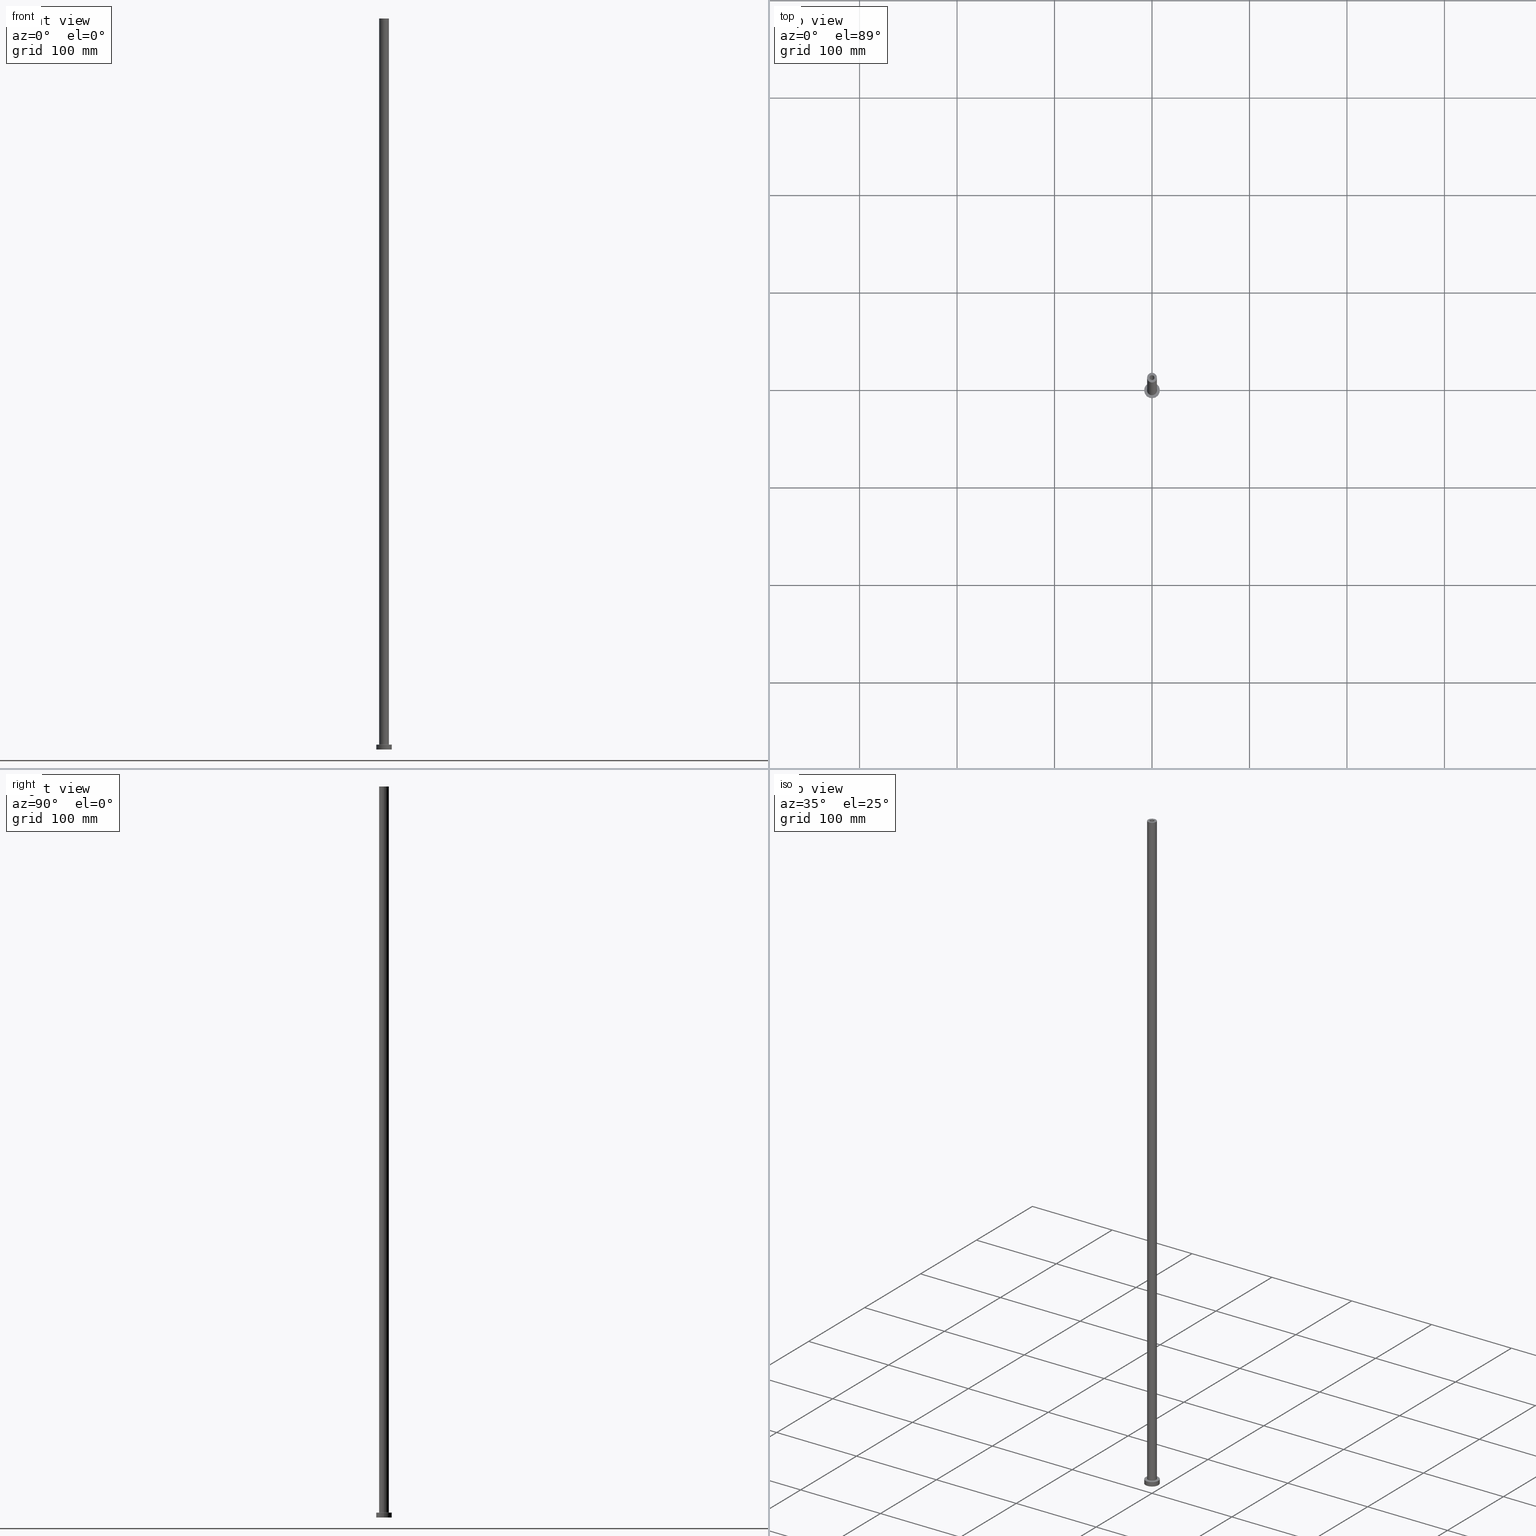
[diagram: canonical four-view strip — front | top / right | iso, engineering-drawing reading convention]
A machine part, canonical four-view strip (front | top / right | iso — engineering-drawing reading convention). The complete STEP part file that produces these views, byte-faithful:
ISO-10303-21;
HEADER;
FILE_DESCRIPTION (( 'STEP AP203' ),
    '1' );
FILE_NAME ('2266.STEP',
    '2023-02-13T16:56:17',
    ( '' ),
    ( '' ),
    'SwSTEP 2.0',
    'SolidWorks 2019',
    '' );
FILE_SCHEMA (( 'CONFIG_CONTROL_DESIGN' ));
ENDSEC;

DATA;
#1 = DIRECTION ( 'NONE',  ( 0.000000000000000000, 0.000000000000000000, 1.000000000000000000 ) ) ;
#2 = DIRECTION ( 'NONE',  ( 1.000000000000000000, 0.000000000000000000, 0.000000000000000000 ) ) ;
#3 = DIRECTION ( 'NONE',  ( 0.000000000000000000, 0.000000000000000000, -1.000000000000000000 ) ) ;
#4 = FACE_OUTER_BOUND ( 'NONE', #209, .T. ) ;
#5 = EDGE_CURVE ( 'NONE', #262, #120, #332, .T. ) ;
#6 = ORIENTED_EDGE ( 'NONE', *, *, #340, .F. ) ;
#7 = DIRECTION ( 'NONE',  ( -1.000000000000000000, 0.000000000000000000, 0.000000000000000000 ) ) ;
#8 = CARTESIAN_POINT ( 'NONE',  ( 0.000000000000000000, 0.000000000000000000, 5.499999999999949374 ) ) ;
#9 = ORIENTED_EDGE ( 'NONE', *, *, #247, .F. ) ;
#10 = PERSON_AND_ORGANIZATION_ROLE ( 'design_owner' ) ;
#11 = AXIS2_PLACEMENT_3D ( 'NONE', #408, #235, #378 ) ;
#12 = DIRECTION ( 'NONE',  ( 0.000000000000000000, 0.000000000000000000, -1.000000000000000000 ) ) ;
#13 = EDGE_CURVE ( 'NONE', #430, #51, #415, .T. ) ;
#14 = ADVANCED_BREP_SHAPE_REPRESENTATION ( '2266', ( #386, #192 ), #200 ) ;
#15 = EDGE_LOOP ( 'NONE', ( #435, #438, #16, #9 ) ) ;
#16 = ORIENTED_EDGE ( 'NONE', *, *, #5, .F. ) ;
#17 = EDGE_LOOP ( 'NONE', ( #233, #226 ) ) ;
#18 = DIRECTION ( 'NONE',  ( 0.000000000000000000, 0.000000000000000000, 1.000000000000000000 ) ) ;
#19 = APPROVAL ( #306, 'NEUR�EN�' ) ;
#20 = DATE_TIME_ROLE ( 'creation_date' ) ;
#21 = PERSON_AND_ORGANIZATION_ROLE ( 'creator' ) ;
#22 = PRODUCT_DEFINITION_FORMATION_WITH_SPECIFIED_SOURCE ( 'LIBOVOLN�', '', #404, .NOT_KNOWN. ) ;
#23 = AXIS2_PLACEMENT_3D ( 'NONE', #111, #321, #455 ) ;
#24 = CALENDAR_DATE ( 2023, 13, 2 ) ;
#25 = CIRCLE ( 'NONE', #32, 5.000000000000000000 ) ;
#26 = DIRECTION ( 'NONE',  ( -0.000000000000000000, -0.000000000000000000, -1.000000000000000000 ) ) ;
#27 = CARTESIAN_POINT ( 'NONE',  ( -5.000000000000000000, 0.000000000000000000, 5.499999999999949374 ) ) ;
#28 = COORDINATED_UNIVERSAL_TIME_OFFSET ( 1, 0, .AHEAD. ) ;
#29 = EDGE_CURVE ( 'NONE', #406, #51, #57, .T. ) ;
#30 = CARTESIAN_POINT ( 'NONE',  ( 5.500000000000000000, 0.000000000000000000, 4.999999999999975131 ) ) ;
#31 = FACE_OUTER_BOUND ( 'NONE', #213, .T. ) ;
#32 = AXIS2_PLACEMENT_3D ( 'NONE', #44, #224, #191 ) ;
#33 = PERSON ( 'NEUR�EN�', 'NEUR�EN�', 'NEUR�EN�', ('NEUR�EN�'), ('NEUR�EN�'), ('NEUR�EN�') ) ;
#34 = TOROIDAL_SURFACE ( 'NONE', #301, 5.500000000000000000, 0.5000000000000000000 ) ;
#35 = CYLINDRICAL_SURFACE ( 'NONE', #436, 5.000000000000000000 ) ;
#36 = CC_DESIGN_SECURITY_CLASSIFICATION ( #188, ( #22 ) ) ;
#37 = DIRECTION ( 'NONE',  ( 0.000000000000000000, 0.000000000000000000, 1.000000000000000000 ) ) ;
#38 = DIRECTION ( 'NONE',  ( -0.000000000000000000, -0.000000000000000000, -1.000000000000000000 ) ) ;
#39 = VECTOR ( 'NONE', #63, 1000.000000000000000 ) ;
#40 = EDGE_CURVE ( 'NONE', #51, #430, #277, .T. ) ;
#41 = DIRECTION ( 'NONE',  ( 0.000000000000000000, 0.000000000000000000, -1.000000000000000000 ) ) ;
#42 = CARTESIAN_POINT ( 'NONE',  ( 0.000000000000000000, 0.000000000000000000, 0.000000000000000000 ) ) ;
#43 = ORIENTED_EDGE ( 'NONE', *, *, #340, .T. ) ;
#44 = CARTESIAN_POINT ( 'NONE',  ( 0.000000000000000000, 0.000000000000000000, 5.499999999999949374 ) ) ;
#45 = EDGE_LOOP ( 'NONE', ( #303, #148 ) ) ;
#46 = DESIGN_CONTEXT ( 'detailed design', #230, 'design' ) ;
#47 = VECTOR ( 'NONE', #182, 1000.000000000000000 ) ;
#48 = FACE_OUTER_BOUND ( 'NONE', #297, .T. ) ;
#49 = EDGE_CURVE ( 'NONE', #120, #262, #72, .T. ) ;
#50 = AXIS2_PLACEMENT_3D ( 'NONE', #113, #119, #160 ) ;
#51 = VERTEX_POINT ( 'NONE', #381 ) ;
#52 = VERTEX_POINT ( 'NONE', #312 ) ;
#53 = DIRECTION ( 'NONE',  ( 1.000000000000000000, 0.000000000000000000, -0.000000000000000000 ) ) ;
#54 = DATE_AND_TIME ( #59, #212 ) ;
#55 = EDGE_CURVE ( 'NONE', #403, #115, #240, .T. ) ;
#56 = CARTESIAN_POINT ( 'NONE',  ( 0.000000000000000000, 0.000000000000000000, 705.0000000000000000 ) ) ;
#57 = LINE ( 'NONE', #82, #310 ) ;
#58 = VECTOR ( 'NONE', #176, 1000.000000000000000 ) ;
#59 = CALENDAR_DATE ( 2023, 13, 2 ) ;
#60 = CIRCLE ( 'NONE', #74, 0.5000000000000004441 ) ;
#61 = LOCAL_TIME ( 17, 56, 17.00000000000000000, #242 ) ;
#62 = ADVANCED_FACE ( 'NONE', ( #342 ), #442, .F. ) ;
#63 = DIRECTION ( 'NONE',  ( -0.000000000000000000, -0.000000000000000000, -1.000000000000000000 ) ) ;
#64 = CALENDAR_DATE ( 2023, 13, 2 ) ;
#65 = APPROVAL_PERSON_ORGANIZATION ( #172, #211, #279 ) ;
#66 = AXIS2_PLACEMENT_3D ( 'NONE', #108, #324, #110 ) ;
#67 = CALENDAR_DATE ( 2023, 13, 2 ) ;
#68 = EDGE_CURVE ( 'NONE', #391, #430, #241, .T. ) ;
#69 = DIRECTION ( 'NONE',  ( -1.000000000000000000, 0.000000000000000000, 0.000000000000000000 ) ) ;
#70 = CARTESIAN_POINT ( 'NONE',  ( 0.000000000000000000, 0.000000000000000000, 5.000000000000000000 ) ) ;
#71 = CC_DESIGN_PERSON_AND_ORGANIZATION_ASSIGNMENT ( #261, #10, ( #404 ) ) ;
#72 = CIRCLE ( 'NONE', #133, 2.500000000000000000 ) ;
#73 = DIRECTION ( 'NONE',  ( 1.000000000000000000, 0.000000000000000000, -0.000000000000000000 ) ) ;
#74 = AXIS2_PLACEMENT_3D ( 'NONE', #325, #205, #103 ) ;
#75 = CARTESIAN_POINT ( 'NONE',  ( 0.000000000000000000, 0.000000000000000000, 750.0000000000000000 ) ) ;
#76 = CYLINDRICAL_SURFACE ( 'NONE', #173, 2.500000000000000000 ) ;
#77 = CARTESIAN_POINT ( 'NONE',  ( -5.000000000000000000, 0.000000000000000000, 750.0000000000000000 ) ) ;
#78 = DIRECTION ( 'NONE',  ( -1.000000000000000000, 0.000000000000000000, 0.000000000000000000 ) ) ;
#79 = ORIENTED_EDGE ( 'NONE', *, *, #154, .T. ) ;
#80 = VECTOR ( 'NONE', #109, 1000.000000000000000 ) ;
#81 = FACE_OUTER_BOUND ( 'NONE', #376, .T. ) ;
#82 = CARTESIAN_POINT ( 'NONE',  ( -8.000000000000000000, 0.000000000000000000, 5.000000000000000000 ) ) ;
#83 = EDGE_LOOP ( 'NONE', ( #189, #331, #295, #157 ) ) ;
#84 = CARTESIAN_POINT ( 'NONE',  ( 2.649999999999999911, 3.245314017740485962E-16, 705.0000000000000000 ) ) ;
#85 = PRODUCT_DEFINITION ( 'NEZN�M�', '', #22, #46 ) ;
#86 = ORIENTED_EDGE ( 'NONE', *, *, #183, .F. ) ;
#87 = ORIENTED_EDGE ( 'NONE', *, *, #260, .T. ) ;
#88 = CIRCLE ( 'NONE', #357, 2.500000000000000000 ) ;
#89 = ORIENTED_EDGE ( 'NONE', *, *, #449, .F. ) ;
#90 = ORIENTED_EDGE ( 'NONE', *, *, #68, .F. ) ;
#91 = EDGE_LOOP ( 'NONE', ( #305, #267 ) ) ;
#92 = DIRECTION ( 'NONE',  ( -1.000000000000000000, 0.000000000000000000, 0.000000000000000000 ) ) ;
#93 = PERSON_AND_ORGANIZATION_ROLE ( 'creator' ) ;
#94 = AXIS2_PLACEMENT_3D ( 'NONE', #397, #1, #151 ) ;
#95 = DATE_AND_TIME ( #64, #265 ) ;
#96 = CIRCLE ( 'NONE', #358, 5.500000000000000000 ) ;
#97 = APPROVAL_PERSON_ORGANIZATION ( #316, #252, #167 ) ;
#98 = CIRCLE ( 'NONE', #363, 5.500000000000000000 ) ;
#99 = AXIS2_PLACEMENT_3D ( 'NONE', #390, #450, #355 ) ;
#100 = DIRECTION ( 'NONE',  ( 1.000000000000000000, 0.000000000000000000, 0.000000000000000000 ) ) ;
#101 = CC_DESIGN_PERSON_AND_ORGANIZATION_ASSIGNMENT ( #273, #137, ( #188 ) ) ;
#102 = ORIENTED_EDGE ( 'NONE', *, *, #29, .F. ) ;
#103 = DIRECTION ( 'NONE',  ( 0.000000000000000000, 0.000000000000000000, -1.000000000000000000 ) ) ;
#104 = FACE_OUTER_BOUND ( 'NONE', #17, .T. ) ;
#105 = LOCAL_TIME ( 17, 56, 17.00000000000000000, #135 ) ;
#106 = VERTEX_POINT ( 'NONE', #30 ) ;
#107 = PLANE ( 'NONE',  #258 ) ;
#108 = CARTESIAN_POINT ( 'NONE',  ( 0.000000000000000000, 0.000000000000000000, 750.0000000000000000 ) ) ;
#109 = DIRECTION ( 'NONE',  ( 0.000000000000000000, 0.000000000000000000, -1.000000000000000000 ) ) ;
#110 = DIRECTION ( 'NONE',  ( 1.000000000000000000, 0.000000000000000000, 0.000000000000000000 ) ) ;
#111 = CARTESIAN_POINT ( 'NONE',  ( 0.000000000000000000, 0.000000000000000000, 5.499999999999949374 ) ) ;
#112 = ADVANCED_FACE ( 'NONE', ( #246 ), #76, .F. ) ;
#113 = CARTESIAN_POINT ( 'NONE',  ( 0.000000000000000000, 0.000000000000000000, 0.000000000000000000 ) ) ;
#114 = VERTEX_POINT ( 'NONE', #395 ) ;
#115 = VERTEX_POINT ( 'NONE', #290 ) ;
#116 = PRODUCT_DEFINITION_SHAPE ( 'NONE', 'NONE',  #85 ) ;
#117 = CARTESIAN_POINT ( 'NONE',  ( 0.000000000000000000, 0.000000000000000000, 712.4953318805775098 ) ) ;
#118 = EDGE_CURVE ( 'NONE', #418, #115, #370, .T. ) ;
#119 = DIRECTION ( 'NONE',  ( -0.000000000000000000, -0.000000000000000000, -1.000000000000000000 ) ) ;
#120 = VERTEX_POINT ( 'NONE', #149 ) ;
#121 = DIRECTION ( 'NONE',  ( -1.000000000000000000, 0.000000000000000000, 0.000000000000000000 ) ) ;
#122 = FACE_BOUND ( 'NONE', #194, .T. ) ;
#123 = ORIENTED_EDGE ( 'NONE', *, *, #68, .T. ) ;
#124 = DIRECTION ( 'NONE',  ( 0.000000000000000000, 0.000000000000000000, -1.000000000000000000 ) ) ;
#125 = LOCAL_TIME ( 17, 56, 17.00000000000000000, #347 ) ;
#126 = ADVANCED_FACE ( 'NONE', ( #283, #104 ), #243, .T. ) ;
#127 = ORIENTED_EDGE ( 'NONE', *, *, #29, .T. ) ;
#128 = CARTESIAN_POINT ( 'NONE',  ( 0.000000000000000000, 0.000000000000000000, 5.000000000000000000 ) ) ;
#129 = ORIENTED_EDGE ( 'NONE', *, *, #154, .F. ) ;
#130 = PERSON_AND_ORGANIZATION ( #33, #447 ) ;
#131 = EDGE_CURVE ( 'NONE', #418, #417, #288, .T. ) ;
#132 = CYLINDRICAL_SURFACE ( 'NONE', #269, 2.649999999999999911 ) ;
#133 = AXIS2_PLACEMENT_3D ( 'NONE', #275, #352, #100 ) ;
#134 = AXIS2_PLACEMENT_3D ( 'NONE', #158, #296, #7 ) ;
#135 = COORDINATED_UNIVERSAL_TIME_OFFSET ( 1, 0, .AHEAD. ) ;
#136 = EDGE_CURVE ( 'NONE', #166, #114, #266, .T. ) ;
#137 = PERSON_AND_ORGANIZATION_ROLE ( 'classification_officer' ) ;
#138 = CYLINDRICAL_SURFACE ( 'NONE', #204, 2.500000000000000000 ) ;
#139 = APPROVAL_STATUS ( 'not_yet_approved' ) ;
#140 = EDGE_CURVE ( 'NONE', #391, #406, #298, .T. ) ;
#141 = ORIENTED_EDGE ( 'NONE', *, *, #131, .T. ) ;
#142 = LINE ( 'NONE', #398, #184 ) ;
#143 = EDGE_LOOP ( 'NONE', ( #161, #86 ) ) ;
#144 = DIRECTION ( 'NONE',  ( 1.000000000000000000, 0.000000000000000000, 0.000000000000000000 ) ) ;
#145 = DIRECTION ( 'NONE',  ( 0.000000000000000000, 0.000000000000000000, 1.000000000000000000 ) ) ;
#146 = EDGE_CURVE ( 'NONE', #403, #228, #434, .T. ) ;
#147 = CARTESIAN_POINT ( 'NONE',  ( 8.000000000000000000, 9.797174393178825657E-16, 5.000000000000000000 ) ) ;
#148 = ORIENTED_EDGE ( 'NONE', *, *, #136, .F. ) ;
#149 = CARTESIAN_POINT ( 'NONE',  ( 2.500000000000000000, 3.061616997868383141E-16, 705.0000000000000000 ) ) ;
#150 = AXIS2_PLACEMENT_3D ( 'NONE', #128, #263, #368 ) ;
#151 = DIRECTION ( 'NONE',  ( 1.000000000000000000, 0.000000000000000000, 0.000000000000000000 ) ) ;
#152 = ADVANCED_FACE ( 'NONE', ( #48 ), #440, .T. ) ;
#153 = ORIENTED_EDGE ( 'NONE', *, *, #247, .T. ) ;
#154 = EDGE_CURVE ( 'NONE', #217, #356, #156, .T. ) ;
#155 = ORIENTED_EDGE ( 'NONE', *, *, #13, .T. ) ;
#156 = LINE ( 'NONE', #432, #225 ) ;
#157 = ORIENTED_EDGE ( 'NONE', *, *, #118, .T. ) ;
#158 = CARTESIAN_POINT ( 'NONE',  ( 0.000000000000000000, 0.000000000000000000, 5.000000000000000000 ) ) ;
#159 = ORIENTED_EDGE ( 'NONE', *, *, #215, .T. ) ;
#160 = DIRECTION ( 'NONE',  ( 1.000000000000000000, 0.000000000000000000, 0.000000000000000000 ) ) ;
#161 = ORIENTED_EDGE ( 'NONE', *, *, #361, .F. ) ;
#162 = EDGE_LOOP ( 'NONE', ( #129, #163, #264, #437 ) ) ;
#163 = ORIENTED_EDGE ( 'NONE', *, *, #284, .T. ) ;
#164 = APPROVAL_PERSON_ORGANIZATION ( #409, #19, #448 ) ;
#165 = CARTESIAN_POINT ( 'NONE',  ( 0.000000000000000000, 0.000000000000000000, 750.0000000000000000 ) ) ;
#166 = VERTEX_POINT ( 'NONE', #231 ) ;
#167 = APPROVAL_ROLE ( '' ) ;
#168 = LINE ( 'NONE', #317, #58 ) ;
#169 = DATE_TIME_ROLE ( 'classification_date' ) ;
#170 = DIRECTION ( 'NONE',  ( 0.000000000000000000, 0.000000000000000000, 1.000000000000000000 ) ) ;
#171 = EDGE_CURVE ( 'NONE', #228, #403, #193, .T. ) ;
#172 = PERSON_AND_ORGANIZATION ( #33, #447 ) ;
#173 = AXIS2_PLACEMENT_3D ( 'NONE', #187, #3, #294 ) ;
#174 = CIRCLE ( 'NONE', #424, 2.649999999999999911 ) ;
#175 = SECURITY_CLASSIFICATION_LEVEL ( 'unclassified' ) ;
#176 = DIRECTION ( 'NONE',  ( 0.000000000000000000, 0.000000000000000000, -1.000000000000000000 ) ) ;
#177 = DATE_AND_TIME ( #24, #125 ) ;
#178 = APPLICATION_CONTEXT ( 'configuration controlled 3d designs of mechanical parts and assemblies' ) ;
#179 = CARTESIAN_POINT ( 'NONE',  ( -5.000000000000000000, 0.000000000000000000, 750.0000000000000000 ) ) ;
#180 = CARTESIAN_POINT ( 'NONE',  ( 0.000000000000000000, 0.000000000000000000, 0.000000000000000000 ) ) ;
#181 = DIRECTION ( 'NONE',  ( 1.000000000000000000, 0.000000000000000000, 0.000000000000000000 ) ) ;
#182 = DIRECTION ( 'NONE',  ( -0.000000000000000000, -0.000000000000000000, -1.000000000000000000 ) ) ;
#183 = EDGE_CURVE ( 'NONE', #356, #52, #237, .T. ) ;
#184 = VECTOR ( 'NONE', #41, 1000.000000000000000 ) ;
#185 = CARTESIAN_POINT ( 'NONE',  ( 8.000000000000000000, 9.797174393178825657E-16, 5.000000000000000000 ) ) ;
#186 = VERTEX_POINT ( 'NONE', #443 ) ;
#187 = CARTESIAN_POINT ( 'NONE',  ( 0.000000000000000000, 0.000000000000000000, 750.0000000000000000 ) ) ;
#188 = SECURITY_CLASSIFICATION ( '', '', #175 ) ;
#189 = ORIENTED_EDGE ( 'NONE', *, *, #55, .F. ) ;
#190 = CC_DESIGN_PERSON_AND_ORGANIZATION_ASSIGNMENT ( #130, #413, ( #22 ) ) ;
#191 = DIRECTION ( 'NONE',  ( 1.000000000000000000, 0.000000000000000000, 0.000000000000000000 ) ) ;
#192 = AXIS2_PLACEMENT_3D ( 'NONE', #42, #367, #330 ) ;
#193 = CIRCLE ( 'NONE', #248, 5.000000000000000000 ) ;
#194 = EDGE_LOOP ( 'NONE', ( #282, #270 ) ) ;
#195 = DIRECTION ( 'NONE',  ( 1.000000000000000000, 0.000000000000000000, 0.000000000000000000 ) ) ;
#196 = ORIENTED_EDGE ( 'NONE', *, *, #49, .T. ) ;
#197 = APPROVAL_DATE_TIME ( #54, #252 ) ;
#198 = DIRECTION ( 'NONE',  ( 1.000000000000000000, 0.000000000000000000, 0.000000000000000000 ) ) ;
#199 = CALENDAR_DATE ( 2023, 13, 2 ) ;
#200 =( GEOMETRIC_REPRESENTATION_CONTEXT ( 3 ) GLOBAL_UNCERTAINTY_ASSIGNED_CONTEXT ( ( #308 ) ) GLOBAL_UNIT_ASSIGNED_CONTEXT ( ( #431, #268, #299 ) ) REPRESENTATION_CONTEXT ( 'NONE', 'WORKASPACE' ) );
#201 = AXIS2_PLACEMENT_3D ( 'NONE', #219, #369, #333 ) ;
#202 = ADVANCED_FACE ( 'NONE', ( #122, #81 ), #218, .T. ) ;
#203 = DIRECTION ( 'NONE',  ( -1.000000000000000000, 0.000000000000000000, 0.000000000000000000 ) ) ;
#204 = AXIS2_PLACEMENT_3D ( 'NONE', #388, #452, #78 ) ;
#205 = DIRECTION ( 'NONE',  ( 0.000000000000000000, -1.000000000000000000, 0.000000000000000000 ) ) ;
#206 = ORIENTED_EDGE ( 'NONE', *, *, #140, .F. ) ;
#207 = DIRECTION ( 'NONE',  ( -0.000000000000000000, -0.000000000000000000, -1.000000000000000000 ) ) ;
#208 = CLOSED_SHELL ( 'NONE', ( #112, #304, #421, #244, #152, #429, #202, #318, #383, #126, #62, #459, #414, #399 ) ) ;
#209 = EDGE_LOOP ( 'NONE', ( #90, #6, #127, #428 ) ) ;
#210 = CARTESIAN_POINT ( 'NONE',  ( -5.500000000000000000, 6.735557395310442023E-16, 5.499999999999949374 ) ) ;
#211 = APPROVAL ( #445, 'NEUR�EN�' ) ;
#212 = LOCAL_TIME ( 17, 56, 17.00000000000000000, #234 ) ;
#213 = EDGE_LOOP ( 'NONE', ( #396, #336 ) ) ;
#214 = ORIENTED_EDGE ( 'NONE', *, *, #335, .T. ) ;
#215 = EDGE_CURVE ( 'NONE', #115, #418, #25, .T. ) ;
#216 = CARTESIAN_POINT ( 'NONE',  ( 0.000000000000000000, 0.000000000000000000, 705.0000000000000000 ) ) ;
#217 = VERTEX_POINT ( 'NONE', #84 ) ;
#218 = PLANE ( 'NONE',  #150 ) ;
#219 = CARTESIAN_POINT ( 'NONE',  ( 0.000000000000000000, 0.000000000000000000, 0.000000000000000000 ) ) ;
#220 = CYLINDRICAL_SURFACE ( 'NONE', #222, 2.649999999999999911 ) ;
#221 = EDGE_LOOP ( 'NONE', ( #257, #453, #214, #89 ) ) ;
#222 = AXIS2_PLACEMENT_3D ( 'NONE', #117, #124, #121 ) ;
#223 = AXIS2_PLACEMENT_3D ( 'NONE', #394, #145, #73 ) ;
#224 = DIRECTION ( 'NONE',  ( 0.000000000000000000, 0.000000000000000000, 1.000000000000000000 ) ) ;
#225 = VECTOR ( 'NONE', #12, 1000.000000000000000 ) ;
#226 = ORIENTED_EDGE ( 'NONE', *, *, #146, .T. ) ;
#227 = AXIS2_PLACEMENT_3D ( 'NONE', #320, #250, #454 ) ;
#228 = VERTEX_POINT ( 'NONE', #77 ) ;
#229 = APPLICATION_PROTOCOL_DEFINITION ( 'international standard', 'config_control_design', 1994, #178 ) ;
#230 = APPLICATION_CONTEXT ( 'configuration controlled 3d designs of mechanical parts and assemblies' ) ;
#231 = CARTESIAN_POINT ( 'NONE',  ( 2.500000000000000000, 3.061616997868383141E-16, 750.0000000000000000 ) ) ;
#232 = ORIENTED_EDGE ( 'NONE', *, *, #136, .T. ) ;
#233 = ORIENTED_EDGE ( 'NONE', *, *, #171, .T. ) ;
#234 = COORDINATED_UNIVERSAL_TIME_OFFSET ( 1, 0, .AHEAD. ) ;
#235 = DIRECTION ( 'NONE',  ( 0.000000000000000000, 0.000000000000000000, 1.000000000000000000 ) ) ;
#236 = PRODUCT_RELATED_PRODUCT_CATEGORY ( 'detail', '', ( #404 ) ) ;
#237 = CIRCLE ( 'NONE', #50, 2.649999999999999911 ) ;
#238 = PERSON_AND_ORGANIZATION ( #33, #447 ) ;
#239 = AXIS2_PLACEMENT_3D ( 'NONE', #216, #366, #53 ) ;
#240 = LINE ( 'NONE', #384, #39 ) ;
#241 = LINE ( 'NONE', #185, #47 ) ;
#242 = COORDINATED_UNIVERSAL_TIME_OFFSET ( 1, 0, .AHEAD. ) ;
#243 = PLANE ( 'NONE',  #223 ) ;
#244 = ADVANCED_FACE ( 'NONE', ( #348 ), #351, .T. ) ;
#245 = CC_DESIGN_APPROVAL ( #19, ( #85 ) ) ;
#246 = FACE_OUTER_BOUND ( 'NONE', #15, .T. ) ;
#247 = EDGE_CURVE ( 'NONE', #114, #262, #168, .T. ) ;
#248 = AXIS2_PLACEMENT_3D ( 'NONE', #165, #375, #195 ) ;
#249 = ORIENTED_EDGE ( 'NONE', *, *, #426, .F. ) ;
#250 = DIRECTION ( 'NONE',  ( 0.000000000000000000, 0.000000000000000000, 1.000000000000000000 ) ) ;
#251 = DIRECTION ( 'NONE',  ( 1.000000000000000000, 0.000000000000000000, 0.000000000000000000 ) ) ;
#252 = APPROVAL ( #139, 'NEUR�EN�' ) ;
#253 = ORIENTED_EDGE ( 'NONE', *, *, #387, .F. ) ;
#254 = CYLINDRICAL_SURFACE ( 'NONE', #334, 8.000000000000000000 ) ;
#255 = EDGE_LOOP ( 'NONE', ( #456, #461, #159, #253 ) ) ;
#256 = MECHANICAL_CONTEXT ( 'NONE', #178, 'mechanical' ) ;
#257 = ORIENTED_EDGE ( 'NONE', *, *, #131, .F. ) ;
#258 = AXIS2_PLACEMENT_3D ( 'NONE', #180, #420, #389 ) ;
#259 = EDGE_LOOP ( 'NONE', ( #339, #232, #153, #439 ) ) ;
#260 = EDGE_CURVE ( 'NONE', #186, #217, #371, .T. ) ;
#261 = PERSON_AND_ORGANIZATION ( #33, #447 ) ;
#262 = VERTEX_POINT ( 'NONE', #281 ) ;
#263 = DIRECTION ( 'NONE',  ( 0.000000000000000000, 0.000000000000000000, 1.000000000000000000 ) ) ;
#264 = ORIENTED_EDGE ( 'NONE', *, *, #337, .T. ) ;
#265 = LOCAL_TIME ( 17, 56, 17.00000000000000000, #28 ) ;
#266 = CIRCLE ( 'NONE', #66, 2.500000000000000000 ) ;
#267 = ORIENTED_EDGE ( 'NONE', *, *, #284, .F. ) ;
#268 =( NAMED_UNIT ( * ) PLANE_ANGLE_UNIT ( ) SI_UNIT ( $, .RADIAN. ) );
#269 = AXIS2_PLACEMENT_3D ( 'NONE', #278, #410, #69 ) ;
#270 = ORIENTED_EDGE ( 'NONE', *, *, #449, .T. ) ;
#271 = DIRECTION ( 'NONE',  ( 1.000000000000000000, 0.000000000000000000, 0.000000000000000000 ) ) ;
#272 = EDGE_CURVE ( 'NONE', #114, #166, #88, .T. ) ;
#273 = PERSON_AND_ORGANIZATION ( #33, #447 ) ;
#274 = DIRECTION ( 'NONE',  ( 0.000000000000000000, 0.000000000000000000, 1.000000000000000000 ) ) ;
#275 = CARTESIAN_POINT ( 'NONE',  ( 0.000000000000000000, 0.000000000000000000, 705.0000000000000000 ) ) ;
#276 = CARTESIAN_POINT ( 'NONE',  ( 5.000000000000000000, 6.123233995736766282E-16, 750.0000000000000000 ) ) ;
#277 = CIRCLE ( 'NONE', #201, 8.000000000000000000 ) ;
#278 = CARTESIAN_POINT ( 'NONE',  ( 0.000000000000000000, 0.000000000000000000, 712.4953318805775098 ) ) ;
#279 = APPROVAL_ROLE ( '' ) ;
#280 = APPROVAL_DATE_TIME ( #177, #211 ) ;
#281 = CARTESIAN_POINT ( 'NONE',  ( -2.500000000000000000, 0.000000000000000000, 705.0000000000000000 ) ) ;
#282 = ORIENTED_EDGE ( 'NONE', *, *, #426, .T. ) ;
#283 = FACE_BOUND ( 'NONE', #45, .T. ) ;
#284 = EDGE_CURVE ( 'NONE', #217, #186, #174, .T. ) ;
#285 = FACE_OUTER_BOUND ( 'NONE', #83, .T. ) ;
#286 = ORIENTED_EDGE ( 'NONE', *, *, #5, .T. ) ;
#287 = CARTESIAN_POINT ( 'NONE',  ( 0.000000000000000000, 0.000000000000000000, 5.000000000000000000 ) ) ;
#288 = CIRCLE ( 'NONE', #346, 0.5000000000000004441 ) ;
#289 = CARTESIAN_POINT ( 'NONE',  ( -2.649999999999999911, 0.000000000000000000, 712.4953318805775098 ) ) ;
#290 = CARTESIAN_POINT ( 'NONE',  ( 5.000000000000000000, 6.123233995736766282E-16, 5.499999999999949374 ) ) ;
#291 = CC_DESIGN_DATE_AND_TIME_ASSIGNMENT ( #350, #169, ( #188 ) ) ;
#292 = FACE_OUTER_BOUND ( 'NONE', #91, .T. ) ;
#293 = EDGE_LOOP ( 'NONE', ( #300, #141, #249, #372 ) ) ;
#294 = DIRECTION ( 'NONE',  ( -1.000000000000000000, 0.000000000000000000, 0.000000000000000000 ) ) ;
#295 = ORIENTED_EDGE ( 'NONE', *, *, #387, .T. ) ;
#296 = DIRECTION ( 'NONE',  ( -0.000000000000000000, -0.000000000000000000, -1.000000000000000000 ) ) ;
#297 = EDGE_LOOP ( 'NONE', ( #206, #123, #155, #102 ) ) ;
#298 = CIRCLE ( 'NONE', #349, 8.000000000000000000 ) ;
#299 =( NAMED_UNIT ( * ) SI_UNIT ( $, .STERADIAN. ) SOLID_ANGLE_UNIT ( ) );
#300 = ORIENTED_EDGE ( 'NONE', *, *, #118, .F. ) ;
#301 = AXIS2_PLACEMENT_3D ( 'NONE', #8, #37, #2 ) ;
#302 = CC_DESIGN_DATE_AND_TIME_ASSIGNMENT ( #311, #20, ( #85 ) ) ;
#303 = ORIENTED_EDGE ( 'NONE', *, *, #272, .F. ) ;
#304 = ADVANCED_FACE ( 'NONE', ( #446 ), #132, .F. ) ;
#305 = ORIENTED_EDGE ( 'NONE', *, *, #260, .F. ) ;
#306 = APPROVAL_STATUS ( 'not_yet_approved' ) ;
#307 = DIRECTION ( 'NONE',  ( 1.000000000000000000, 0.000000000000000000, 0.000000000000000000 ) ) ;
#308 = UNCERTAINTY_MEASURE_WITH_UNIT (LENGTH_MEASURE( 1.000000000000000082E-05 ), #431, 'distance_accuracy_value', 'NONE');
#309 = DIRECTION ( 'NONE',  ( 1.000000000000000000, 0.000000000000000000, 0.000000000000000000 ) ) ;
#310 = VECTOR ( 'NONE', #405, 1000.000000000000000 ) ;
#311 = DATE_AND_TIME ( #199, #105 ) ;
#312 = CARTESIAN_POINT ( 'NONE',  ( -2.649999999999999911, 0.000000000000000000, 0.000000000000000000 ) ) ;
#313 = AXIS2_PLACEMENT_3D ( 'NONE', #377, #26, #92 ) ;
#314 = CIRCLE ( 'NONE', #365, 2.649999999999999911 ) ;
#315 = APPROVAL_DATE_TIME ( #95, #19 ) ;
#316 = PERSON_AND_ORGANIZATION ( #33, #447 ) ;
#317 = CARTESIAN_POINT ( 'NONE',  ( -2.500000000000000000, 0.000000000000000000, 750.0000000000000000 ) ) ;
#318 = ADVANCED_FACE ( 'NONE', ( #425, #31 ), #107, .F. ) ;
#319 = AXIS2_PLACEMENT_3D ( 'NONE', #56, #274, #198 ) ;
#320 = CARTESIAN_POINT ( 'NONE',  ( 0.000000000000000000, 0.000000000000000000, 5.000000000000000000 ) ) ;
#321 = DIRECTION ( 'NONE',  ( 0.000000000000000000, 0.000000000000000000, 1.000000000000000000 ) ) ;
#322 = LINE ( 'NONE', #179, #382 ) ;
#323 = CARTESIAN_POINT ( 'NONE',  ( 8.000000000000000000, 9.797174393178825657E-16, 0.000000000000000000 ) ) ;
#324 = DIRECTION ( 'NONE',  ( 0.000000000000000000, 0.000000000000000000, 1.000000000000000000 ) ) ;
#325 = CARTESIAN_POINT ( 'NONE',  ( 5.500000000000000000, 0.000000000000000000, 5.499999999999949374 ) ) ;
#326 = CARTESIAN_POINT ( 'NONE',  ( 2.649999999999999911, 3.245314017740485962E-16, 0.000000000000000000 ) ) ;
#327 = DIRECTION ( 'NONE',  ( 1.000000000000000000, 0.000000000000000000, 0.000000000000000000 ) ) ;
#328 = PLANE ( 'NONE',  #239 ) ;
#329 = EDGE_LOOP ( 'NONE', ( #286, #196 ) ) ;
#330 = DIRECTION ( 'NONE',  ( 1.000000000000000000, 0.000000000000000000, 0.000000000000000000 ) ) ;
#331 = ORIENTED_EDGE ( 'NONE', *, *, #171, .F. ) ;
#332 = CIRCLE ( 'NONE', #419, 2.500000000000000000 ) ;
#333 = DIRECTION ( 'NONE',  ( 1.000000000000000000, 0.000000000000000000, 0.000000000000000000 ) ) ;
#334 = AXIS2_PLACEMENT_3D ( 'NONE', #402, #364, #393 ) ;
#335 = EDGE_CURVE ( 'NONE', #115, #106, #60, .T. ) ;
#336 = ORIENTED_EDGE ( 'NONE', *, *, #13, .F. ) ;
#337 = EDGE_CURVE ( 'NONE', #186, #52, #392, .T. ) ;
#338 = DIRECTION ( 'NONE',  ( 0.000000000000000000, 0.000000000000000000, 1.000000000000000000 ) ) ;
#339 = ORIENTED_EDGE ( 'NONE', *, *, #343, .F. ) ;
#340 = EDGE_CURVE ( 'NONE', #406, #391, #444, .T. ) ;
#341 = CARTESIAN_POINT ( 'NONE',  ( 0.000000000000000000, 0.000000000000000000, 705.0000000000000000 ) ) ;
#342 = FACE_OUTER_BOUND ( 'NONE', #221, .T. ) ;
#343 = EDGE_CURVE ( 'NONE', #166, #120, #142, .T. ) ;
#344 = SHAPE_DEFINITION_REPRESENTATION ( #116, #14 ) ;
#345 = CC_DESIGN_APPROVAL ( #252, ( #188 ) ) ;
#346 = AXIS2_PLACEMENT_3D ( 'NONE', #210, #359, #427 ) ;
#347 = COORDINATED_UNIVERSAL_TIME_OFFSET ( 1, 0, .AHEAD. ) ;
#348 = FACE_OUTER_BOUND ( 'NONE', #255, .T. ) ;
#349 = AXIS2_PLACEMENT_3D ( 'NONE', #287, #422, #251 ) ;
#350 = DATE_AND_TIME ( #67, #61 ) ;
#351 = CYLINDRICAL_SURFACE ( 'NONE', #313, 5.000000000000000000 ) ;
#352 = DIRECTION ( 'NONE',  ( 0.000000000000000000, 0.000000000000000000, 1.000000000000000000 ) ) ;
#353 = DIRECTION ( 'NONE',  ( -0.000000000000000000, -0.000000000000000000, -1.000000000000000000 ) ) ;
#354 = CC_DESIGN_PERSON_AND_ORGANIZATION_ASSIGNMENT ( #238, #21, ( #85 ) ) ;
#355 = DIRECTION ( 'NONE',  ( 1.000000000000000000, 0.000000000000000000, 0.000000000000000000 ) ) ;
#356 = VERTEX_POINT ( 'NONE', #326 ) ;
#357 = AXIS2_PLACEMENT_3D ( 'NONE', #385, #18, #307 ) ;
#358 = AXIS2_PLACEMENT_3D ( 'NONE', #423, #38, #327 ) ;
#359 = DIRECTION ( 'NONE',  ( 1.224646799147353207E-16, 1.000000000000000000, -0.000000000000000000 ) ) ;
#360 = FACE_OUTER_BOUND ( 'NONE', #293, .T. ) ;
#361 = EDGE_CURVE ( 'NONE', #52, #356, #314, .T. ) ;
#362 = CARTESIAN_POINT ( 'NONE',  ( -8.000000000000000000, 0.000000000000000000, 5.000000000000000000 ) ) ;
#363 = AXIS2_PLACEMENT_3D ( 'NONE', #70, #207, #181 ) ;
#364 = DIRECTION ( 'NONE',  ( -0.000000000000000000, -0.000000000000000000, -1.000000000000000000 ) ) ;
#365 = AXIS2_PLACEMENT_3D ( 'NONE', #457, #353, #144 ) ;
#366 = DIRECTION ( 'NONE',  ( 0.000000000000000000, 0.000000000000000000, 1.000000000000000000 ) ) ;
#367 = DIRECTION ( 'NONE',  ( 0.000000000000000000, 0.000000000000000000, 1.000000000000000000 ) ) ;
#368 = DIRECTION ( 'NONE',  ( 1.000000000000000000, 0.000000000000000000, -0.000000000000000000 ) ) ;
#369 = DIRECTION ( 'NONE',  ( 0.000000000000000000, 0.000000000000000000, 1.000000000000000000 ) ) ;
#370 = CIRCLE ( 'NONE', #23, 5.000000000000000000 ) ;
#371 = CIRCLE ( 'NONE', #319, 2.649999999999999911 ) ;
#372 = ORIENTED_EDGE ( 'NONE', *, *, #335, .F. ) ;
#373 = CC_DESIGN_PERSON_AND_ORGANIZATION_ASSIGNMENT ( #411, #93, ( #22 ) ) ;
#374 = ORIENTED_EDGE ( 'NONE', *, *, #140, .T. ) ;
#375 = DIRECTION ( 'NONE',  ( 0.000000000000000000, 0.000000000000000000, 1.000000000000000000 ) ) ;
#376 = EDGE_LOOP ( 'NONE', ( #43, #374 ) ) ;
#377 = CARTESIAN_POINT ( 'NONE',  ( 0.000000000000000000, 0.000000000000000000, 750.0000000000000000 ) ) ;
#378 = DIRECTION ( 'NONE',  ( 1.000000000000000000, 0.000000000000000000, 0.000000000000000000 ) ) ;
#379 = APPLICATION_PROTOCOL_DEFINITION ( 'international standard', 'config_control_design', 1994, #230 ) ;
#380 = CARTESIAN_POINT ( 'NONE',  ( 0.000000000000000000, 0.000000000000000000, 705.0000000000000000 ) ) ;
#381 = CARTESIAN_POINT ( 'NONE',  ( -8.000000000000000000, 0.000000000000000000, 0.000000000000000000 ) ) ;
#382 = VECTOR ( 'NONE', #460, 1000.000000000000000 ) ;
#383 = ADVANCED_FACE ( 'NONE', ( #285 ), #35, .T. ) ;
#384 = CARTESIAN_POINT ( 'NONE',  ( 5.000000000000000000, 6.123233995736766282E-16, 750.0000000000000000 ) ) ;
#385 = CARTESIAN_POINT ( 'NONE',  ( 0.000000000000000000, 0.000000000000000000, 750.0000000000000000 ) ) ;
#386 = MANIFOLD_SOLID_BREP ( 'Odebrat vysunut�m4', #208 ) ;
#387 = EDGE_CURVE ( 'NONE', #228, #418, #322, .T. ) ;
#388 = CARTESIAN_POINT ( 'NONE',  ( 0.000000000000000000, 0.000000000000000000, 750.0000000000000000 ) ) ;
#389 = DIRECTION ( 'NONE',  ( 1.000000000000000000, 0.000000000000000000, -0.000000000000000000 ) ) ;
#390 = CARTESIAN_POINT ( 'NONE',  ( 0.000000000000000000, 0.000000000000000000, 5.499999999999949374 ) ) ;
#391 = VERTEX_POINT ( 'NONE', #147 ) ;
#392 = LINE ( 'NONE', #289, #80 ) ;
#393 = DIRECTION ( 'NONE',  ( -1.000000000000000000, 0.000000000000000000, 0.000000000000000000 ) ) ;
#394 = CARTESIAN_POINT ( 'NONE',  ( 0.000000000000000000, 0.000000000000000000, 750.0000000000000000 ) ) ;
#395 = CARTESIAN_POINT ( 'NONE',  ( -2.500000000000000000, 0.000000000000000000, 750.0000000000000000 ) ) ;
#396 = ORIENTED_EDGE ( 'NONE', *, *, #40, .F. ) ;
#397 = CARTESIAN_POINT ( 'NONE',  ( 0.000000000000000000, 0.000000000000000000, 750.0000000000000000 ) ) ;
#398 = CARTESIAN_POINT ( 'NONE',  ( 2.500000000000000000, 3.061616997868383141E-16, 750.0000000000000000 ) ) ;
#399 = ADVANCED_FACE ( 'NONE', ( #451 ), #138, .F. ) ;
#400 = FACE_BOUND ( 'NONE', #329, .T. ) ;
#401 = EDGE_LOOP ( 'NONE', ( #87, #79, #433, #407 ) ) ;
#402 = CARTESIAN_POINT ( 'NONE',  ( 0.000000000000000000, 0.000000000000000000, 5.000000000000000000 ) ) ;
#403 = VERTEX_POINT ( 'NONE', #276 ) ;
#404 = PRODUCT ( '2266', '2266', '', ( #256 ) ) ;
#405 = DIRECTION ( 'NONE',  ( -0.000000000000000000, -0.000000000000000000, -1.000000000000000000 ) ) ;
#406 = VERTEX_POINT ( 'NONE', #362 ) ;
#407 = ORIENTED_EDGE ( 'NONE', *, *, #337, .F. ) ;
#408 = CARTESIAN_POINT ( 'NONE',  ( 0.000000000000000000, 0.000000000000000000, 0.000000000000000000 ) ) ;
#409 = PERSON_AND_ORGANIZATION ( #33, #447 ) ;
#410 = DIRECTION ( 'NONE',  ( 0.000000000000000000, 0.000000000000000000, -1.000000000000000000 ) ) ;
#411 = PERSON_AND_ORGANIZATION ( #33, #447 ) ;
#412 = CARTESIAN_POINT ( 'NONE',  ( -5.500000000000000000, 6.735557395310442023E-16, 4.999999999999975131 ) ) ;
#413 = PERSON_AND_ORGANIZATION_ROLE ( 'design_supplier' ) ;
#414 = ADVANCED_FACE ( 'NONE', ( #400, #292 ), #328, .F. ) ;
#415 = CIRCLE ( 'NONE', #11, 8.000000000000000000 ) ;
#416 = DIRECTION ( 'NONE',  ( -0.000000000000000000, -0.000000000000000000, -1.000000000000000000 ) ) ;
#417 = VERTEX_POINT ( 'NONE', #412 ) ;
#418 = VERTEX_POINT ( 'NONE', #27 ) ;
#419 = AXIS2_PLACEMENT_3D ( 'NONE', #341, #338, #271 ) ;
#420 = DIRECTION ( 'NONE',  ( 0.000000000000000000, 0.000000000000000000, 1.000000000000000000 ) ) ;
#421 = ADVANCED_FACE ( 'NONE', ( #360 ), #34, .F. ) ;
#422 = DIRECTION ( 'NONE',  ( 0.000000000000000000, 0.000000000000000000, 1.000000000000000000 ) ) ;
#423 = CARTESIAN_POINT ( 'NONE',  ( 0.000000000000000000, 0.000000000000000000, 5.000000000000000000 ) ) ;
#424 = AXIS2_PLACEMENT_3D ( 'NONE', #380, #170, #309 ) ;
#425 = FACE_BOUND ( 'NONE', #143, .T. ) ;
#426 = EDGE_CURVE ( 'NONE', #106, #417, #96, .T. ) ;
#427 = DIRECTION ( 'NONE',  ( -1.000000000000000000, 1.224646799147351482E-16, 0.000000000000000000 ) ) ;
#428 = ORIENTED_EDGE ( 'NONE', *, *, #40, .T. ) ;
#429 = ADVANCED_FACE ( 'NONE', ( #4 ), #254, .T. ) ;
#430 = VERTEX_POINT ( 'NONE', #323 ) ;
#431 =( LENGTH_UNIT ( ) NAMED_UNIT ( * ) SI_UNIT ( .MILLI., .METRE. ) );
#432 = CARTESIAN_POINT ( 'NONE',  ( 2.649999999999999911, 3.245314017740485962E-16, 712.4953318805775098 ) ) ;
#433 = ORIENTED_EDGE ( 'NONE', *, *, #183, .T. ) ;
#434 = CIRCLE ( 'NONE', #94, 5.000000000000000000 ) ;
#435 = ORIENTED_EDGE ( 'NONE', *, *, #272, .T. ) ;
#436 = AXIS2_PLACEMENT_3D ( 'NONE', #75, #416, #203 ) ;
#437 = ORIENTED_EDGE ( 'NONE', *, *, #361, .T. ) ;
#438 = ORIENTED_EDGE ( 'NONE', *, *, #343, .T. ) ;
#439 = ORIENTED_EDGE ( 'NONE', *, *, #49, .F. ) ;
#440 = CYLINDRICAL_SURFACE ( 'NONE', #134, 8.000000000000000000 ) ;
#441 = CC_DESIGN_APPROVAL ( #211, ( #22 ) ) ;
#442 = TOROIDAL_SURFACE ( 'NONE', #99, 5.500000000000000000, 0.5000000000000000000 ) ;
#443 = CARTESIAN_POINT ( 'NONE',  ( -2.649999999999999911, 0.000000000000000000, 705.0000000000000000 ) ) ;
#444 = CIRCLE ( 'NONE', #227, 8.000000000000000000 ) ;
#445 = APPROVAL_STATUS ( 'not_yet_approved' ) ;
#446 = FACE_OUTER_BOUND ( 'NONE', #401, .T. ) ;
#447 = ORGANIZATION ( 'NEUR�EN�', 'NEUR�EN�', '' ) ;
#448 = APPROVAL_ROLE ( '' ) ;
#449 = EDGE_CURVE ( 'NONE', #417, #106, #98, .T. ) ;
#450 = DIRECTION ( 'NONE',  ( 0.000000000000000000, 0.000000000000000000, 1.000000000000000000 ) ) ;
#451 = FACE_OUTER_BOUND ( 'NONE', #259, .T. ) ;
#452 = DIRECTION ( 'NONE',  ( 0.000000000000000000, 0.000000000000000000, -1.000000000000000000 ) ) ;
#453 = ORIENTED_EDGE ( 'NONE', *, *, #215, .F. ) ;
#454 = DIRECTION ( 'NONE',  ( 1.000000000000000000, 0.000000000000000000, 0.000000000000000000 ) ) ;
#455 = DIRECTION ( 'NONE',  ( 1.000000000000000000, 0.000000000000000000, 0.000000000000000000 ) ) ;
#456 = ORIENTED_EDGE ( 'NONE', *, *, #146, .F. ) ;
#457 = CARTESIAN_POINT ( 'NONE',  ( 0.000000000000000000, 0.000000000000000000, 0.000000000000000000 ) ) ;
#458 = FACE_OUTER_BOUND ( 'NONE', #162, .T. ) ;
#459 = ADVANCED_FACE ( 'NONE', ( #458 ), #220, .F. ) ;
#460 = DIRECTION ( 'NONE',  ( -0.000000000000000000, -0.000000000000000000, -1.000000000000000000 ) ) ;
#461 = ORIENTED_EDGE ( 'NONE', *, *, #55, .T. ) ;
ENDSEC;
END-ISO-10303-21;
